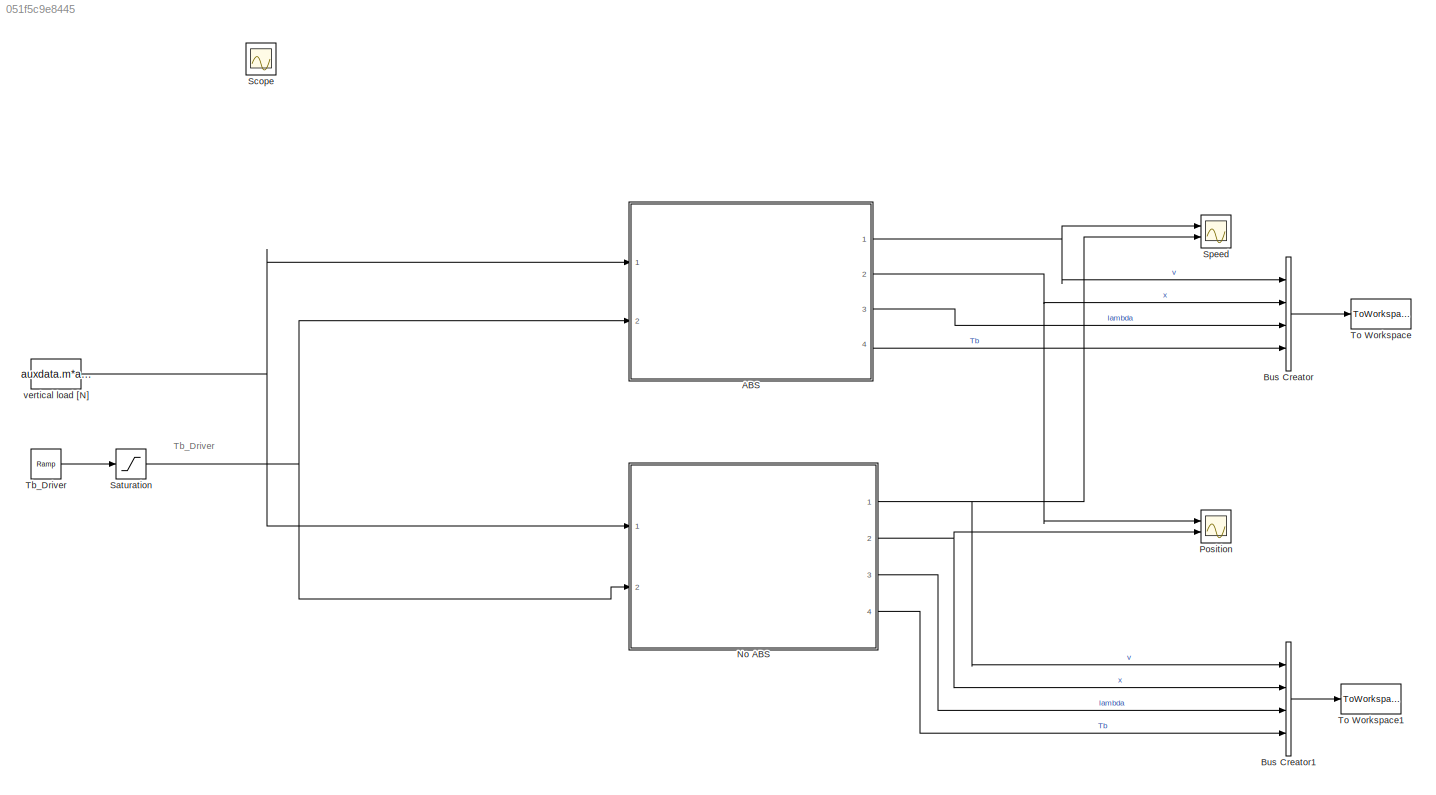
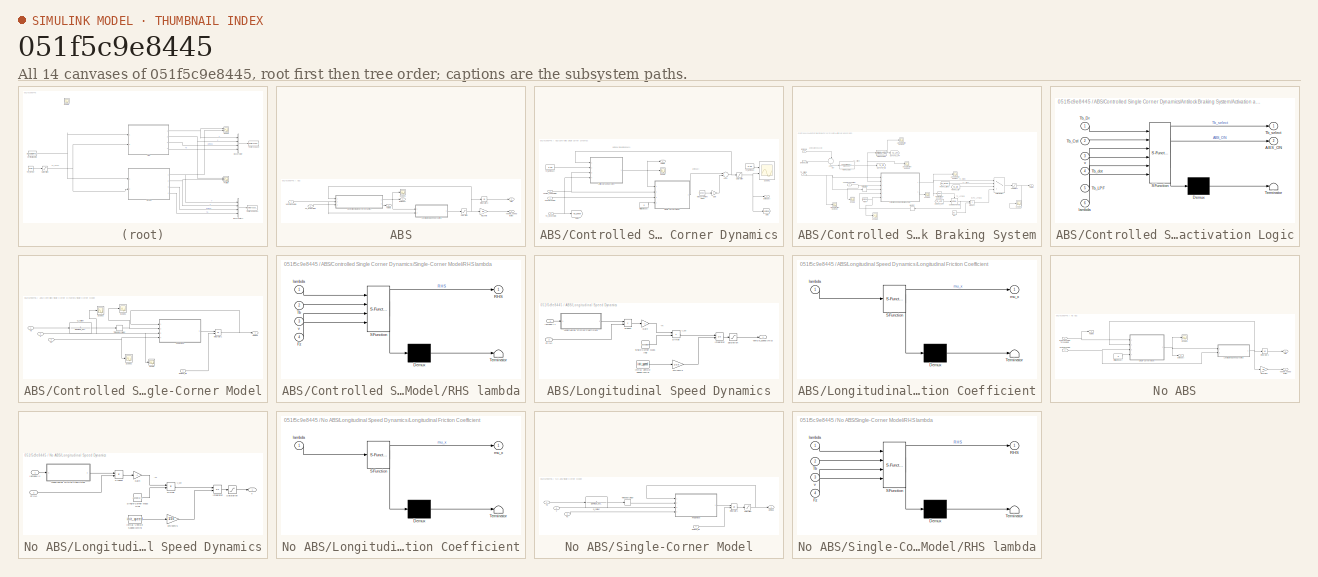
[diagram: thumbnail index - all 14 canvases of the model, root first then tree order]
MODEL slx_051f5c9e8445
KIND model
CONFIG AbsTol = auto
CONFIG EnableMultiTasking = on
CONFIG FixedStep = auto
CONFIG MaxStep = 1e-3
CONFIG MinStep = auto
CONFIG RelTol = 1e-3
CONFIG SampleTimeConstraint = Unconstrained
CONFIG Solver = VariableStepAuto
CONFIG SolverName = VariableStepAuto
CONFIG StartTime = 0.0
CONFIG StopTime = tf
BLOCK [SubSystem] ABS
  Ports = [2, 4]
  RequestExecContextInheritance = off
BLOCK [SubSystem] ABS/Controlled Single Corner Dynamics
  Ports = [3, 2]
  RequestExecContextInheritance = off
  TreatAsAtomicUnit = on
BLOCK [Sum] ABS/Controlled Single Corner Dynamics/Add1
  InputSameDT = off
  OutDataTypeStr = Inherit: Inherit via internal rule
  Ports = [2, 1]
  SaturateOnIntegerOverflow = off
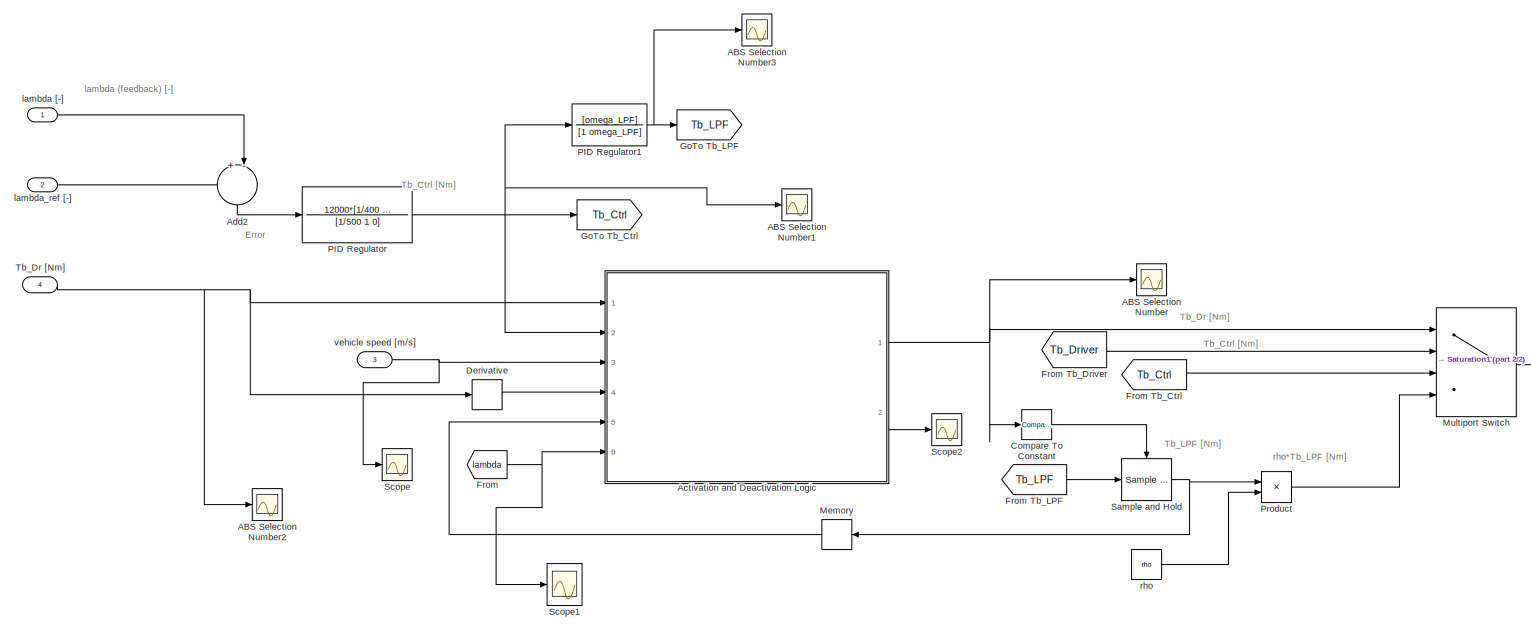
[diagram: ABS/Controlled Single Corner Dynamics/Antilock Braking System - part 1/2, most of the canvas]
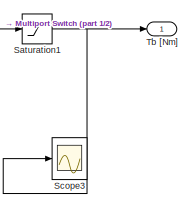
[diagram: ABS/Controlled Single Corner Dynamics/Antilock Braking System - part 2/2, bottom right region]
BLOCK [SubSystem] ABS/Controlled Single Corner Dynamics/Antilock Braking System
  Ports = [4, 1]
  RequestExecContextInheritance = off
BLOCK [Scope] ABS/Controlled Single Corner Dynamics/Antilock Braking System/ABS Selection Number
  Floating = off
  NumInputPorts = 1
  Ports = [1]
  ScopeSpecificationString = Simulink.scopes.TimeScopeBlockCfg('CurrentConfiguration', extmgr.ConfigurationSet(extmgr.Configuration('Core','General UI',true),extmgr.Configuration('Core','Source UI',true),extmgr.Configuration('Sources','WiredSimulink',true,'DataLoggingVariableName','ScopeData9'),extmgr.Configuration('Visuals','Time Domain',true,'SerializedDisplays',{struct('MinYLimReal','0.75','MaxYLimReal','3.25','YLabelReal'...<+1427ch>
BLOCK [Scope] ABS/Controlled Single Corner Dynamics/Antilock Braking System/ABS Selection Number1
  Floating = off
  NumInputPorts = 1
  Ports = [1]
  ScopeSpecificationString = Simulink.scopes.TimeScopeBlockCfg('CurrentConfiguration', extmgr.ConfigurationSet(extmgr.Configuration('Core','General UI',true),extmgr.Configuration('Core','Source UI',true),extmgr.Configuration('Sources','WiredSimulink',true,'DataLoggingVariableName','ScopeData1'),extmgr.Configuration('Visuals','Time Domain',true,'SerializedDisplays',{struct('MinYLimReal','-37.27','MaxYLimReal','1552.93735','YLa...<+1432ch>
BLOCK [Scope] ABS/Controlled Single Corner Dynamics/Antilock Braking System/ABS Selection Number2
  Floating = off
  NumInputPorts = 1
  Ports = [1]
  ScopeSpecificationString = Simulink.scopes.TimeScopeBlockCfg('CurrentConfiguration', extmgr.ConfigurationSet(extmgr.Configuration('Core','General UI',true),extmgr.Configuration('Core','Source UI',true),extmgr.Configuration('Sources','WiredSimulink',true,'DataLoggingVariableName','ScopeData2'),extmgr.Configuration('Visuals','Time Domain',true,'SerializedDisplays',{struct('MinYLimReal','-187.5','MaxYLimReal','1687.5','YLabelR...<+1414ch>
BLOCK [Scope] ABS/Controlled Single Corner Dynamics/Antilock Braking System/ABS Selection Number3
  Floating = off
  NumInputPorts = 1
  Ports = [1]
  ScopeSpecificationString = Simulink.scopes.TimeScopeBlockCfg('CurrentConfiguration', extmgr.ConfigurationSet(extmgr.Configuration('Core','General UI',true),extmgr.Configuration('Core','Source UI',true),extmgr.Configuration('Sources','WiredSimulink',true,'DataLoggingVariableName','ScopeData3'),extmgr.Configuration('Visuals','Time Domain',true,'SerializedDisplays',{struct('MinYLimReal','-174.09911','MaxYLimReal','1566.89198',...<+1442ch>
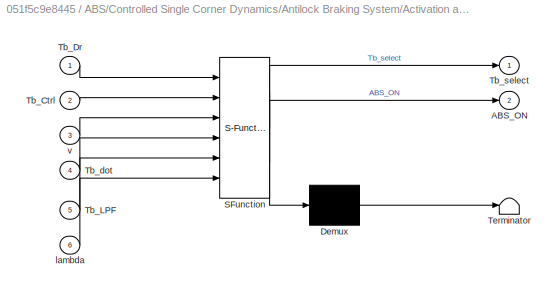
BLOCK [SubSystem] ABS/Controlled Single Corner Dynamics/Antilock Braking System/Activation and Deactivation Logic
  ErrorFcn = Stateflow.Translate.translate
  PermitHierarchicalResolution = ExplicitOnly
  Ports = [6, 2]
  RequestExecContextInheritance = off
  SFBlockType = Chart
  TreatAsAtomicUnit = on
BLOCK [Demux] ABS/Controlled Single Corner Dynamics/Antilock Braking System/Activation and Deactivation Logic/ Demux 
  Outputs = 1
  Ports = [1, 1]
BLOCK [S-Function] ABS/Controlled Single Corner Dynamics/Antilock Braking System/Activation and Deactivation Logic/ SFunction 
  EnableBusSupport = on
  FunctionName = sf_sfun
  Parameters = Tb_dot_max,hv,lambda1_th,lambda2_th,rho_off,rho_on,v_on,v_stop
  PortCounts = [6 3]
  Ports = [6, 3]
  SFcnIsStateOwnerBlock = off
  SFunctionDeploymentMode = off
  Tag = Stateflow S-Function ABS_contDyn_model 4
BLOCK [Terminator] ABS/Controlled Single Corner Dynamics/Antilock Braking System/Activation and Deactivation Logic/ Terminator 
BLOCK [Outport] ABS/Controlled Single Corner Dynamics/Antilock Braking System/Activation and Deactivation Logic/ABS_ON
  IconDisplay = Port number
  Port = 2
BLOCK [Inport] ABS/Controlled Single Corner Dynamics/Antilock Braking System/Activation and Deactivation Logic/Tb_Ctrl
  IconDisplay = Port number
  Port = 2
BLOCK [Inport] ABS/Controlled Single Corner Dynamics/Antilock Braking System/Activation and Deactivation Logic/Tb_Dr
  IconDisplay = Port number
BLOCK [Inport] ABS/Controlled Single Corner Dynamics/Antilock Braking System/Activation and Deactivation Logic/Tb_LPF
  IconDisplay = Port number
  Port = 5
BLOCK [Inport] ABS/Controlled Single Corner Dynamics/Antilock Braking System/Activation and Deactivation Logic/Tb_dot
  IconDisplay = Port number
  Port = 4
BLOCK [Outport] ABS/Controlled Single Corner Dynamics/Antilock Braking System/Activation and Deactivation Logic/Tb_select
  IconDisplay = Port number
BLOCK [Inport] ABS/Controlled Single Corner Dynamics/Antilock Braking System/Activation and Deactivation Logic/lambda
  IconDisplay = Port number
  Port = 6
BLOCK [Inport] ABS/Controlled Single Corner Dynamics/Antilock Braking System/Activation and Deactivation Logic/v
  IconDisplay = Port number
  Port = 3
BLOCK [Sum] ABS/Controlled Single Corner Dynamics/Antilock Braking System/Add2
  IconShape = round
  InputSameDT = off
  Inputs = +-|
  OutDataTypeStr = Inherit: Inherit via internal rule
  Ports = [2, 1]
  SaturateOnIntegerOverflow = off
BLOCK [Reference] ABS/Controlled Single Corner Dynamics/Antilock Braking System/Compare To Constant  REF=simulink/Logic and Bit
Operations/Compare
To Constant
  Ports = [1, 1]
  SourceBlock = simulink/Logic and Bit\nOperations/Compare\nTo Constant
  SourceProductBaseCode = SL
  SourceProductName = Simulink
  SourceType = Compare To Constant
BLOCK [Derivative] ABS/Controlled Single Corner Dynamics/Antilock Braking System/Derivative
BLOCK [From] ABS/Controlled Single Corner Dynamics/Antilock Braking System/From
  GotoTag = lambda
  TagVisibility = global
BLOCK [From] ABS/Controlled Single Corner Dynamics/Antilock Braking System/From Tb_Ctrl
  GotoTag = Tb_Ctrl
  TagVisibility = global
BLOCK [From] ABS/Controlled Single Corner Dynamics/Antilock Braking System/From Tb_Driver
  GotoTag = Tb_Driver
  TagVisibility = global
BLOCK [From] ABS/Controlled Single Corner Dynamics/Antilock Braking System/From Tb_LPF
  GotoTag = Tb_LPF
  TagVisibility = global
BLOCK [Goto] ABS/Controlled Single Corner Dynamics/Antilock Braking System/GoTo Tb_Ctrl
  GotoTag = Tb_Ctrl
  TagVisibility = global
BLOCK [Goto] ABS/Controlled Single Corner Dynamics/Antilock Braking System/GoTo Tb_LPF
  GotoTag = Tb_LPF
  TagVisibility = global
BLOCK [Memory] ABS/Controlled Single Corner Dynamics/Antilock Braking System/Memory
BLOCK [MultiPortSwitch] ABS/Controlled Single Corner Dynamics/Antilock Braking System/Multiport Switch
  InputSameDT = off
  Ports = [4, 1]
  SaturateOnIntegerOverflow = off
BLOCK [TransferFcn] ABS/Controlled Single Corner Dynamics/Antilock Braking System/PID Regulator
  Denominator = [1/500 1 0]
  Numerator = 12000*[1/400 1/10 1]
BLOCK [TransferFcn] ABS/Controlled Single Corner Dynamics/Antilock Braking System/PID Regulator1
  Denominator = [1 omega_LPF]
  Numerator = [omega_LPF]
BLOCK [Product] ABS/Controlled Single Corner Dynamics/Antilock Braking System/Product
  InputSameDT = off
  OutDataTypeStr = Inherit: Inherit via internal rule
  Ports = [2, 1]
  RndMeth = Floor
  SaturateOnIntegerOverflow = off
BLOCK [Reference] ABS/Controlled Single Corner Dynamics/Antilock Braking System/Sample and Hold  REF=dspsigops/Sample
and Hold
  Ports = [1, 1, 0, 1]
  SourceBlock = dspsigops/Sample\nand Hold
  SourceProductBaseCode = DS
  SourceProductName = DSP System Toolbox
  SourceType = Sample and Hold
BLOCK [Saturate] ABS/Controlled Single Corner Dynamics/Antilock Braking System/Saturation1
  InputPortMap = u0
  LowerLimit = 0
  Ports = [1, 1]
  UpperLimit = 1500
BLOCK [Scope] ABS/Controlled Single Corner Dynamics/Antilock Braking System/Scope
  Floating = off
  NumInputPorts = 1
  Ports = [1]
  ScopeSpecificationString = Simulink.scopes.TimeScopeBlockCfg('CurrentConfiguration', extmgr.ConfigurationSet(extmgr.Configuration('Core','General UI',true),extmgr.Configuration('Core','Source UI',true),extmgr.Configuration('Sources','WiredSimulink',true,'DataLoggingVariableName','ScopeData2'),extmgr.Configuration('Visuals','Time Domain',true,'SerializedDisplays',{struct('MinYLimReal','-3.4711','MaxYLimReal','31.24987','YLab...<+1406ch>
BLOCK [Scope] ABS/Controlled Single Corner Dynamics/Antilock Braking System/Scope1
  Floating = off
  NumInputPorts = 1
  Ports = [1]
  ScopeSpecificationString = Simulink.scopes.TimeScopeBlockCfg('CurrentConfiguration', extmgr.ConfigurationSet(extmgr.Configuration('Core','General UI',true),extmgr.Configuration('Core','Source UI',true),extmgr.Configuration('Sources','WiredSimulink',true,'DataLoggingVariableName','ScopeData6'),extmgr.Configuration('Visuals','Time Domain',true,'SerializedDisplays',{struct('MinYLimReal','-0.01727','MaxYLimReal','0.15542','YLab...<+1395ch>
BLOCK [Scope] ABS/Controlled Single Corner Dynamics/Antilock Braking System/Scope2
  Floating = off
  NumInputPorts = 1
  Ports = [1]
  ScopeSpecificationString = Simulink.scopes.TimeScopeBlockCfg('CurrentConfiguration', extmgr.ConfigurationSet(extmgr.Configuration('Core','General UI',true),extmgr.Configuration('Core','Source UI',true),extmgr.Configuration('Sources','WiredSimulink',true,'DataLoggingVariableName','ScopeData7'),extmgr.Configuration('Visuals','Time Domain',true,'SerializedDisplays',{struct('MinYLimReal','-0.125','MaxYLimReal','1.125','YLabelRe...<+1438ch>
BLOCK [Scope] ABS/Controlled Single Corner Dynamics/Antilock Braking System/Scope3
  Floating = off
  NumInputPorts = 1
  Ports = [1]
  ScopeSpecificationString = Simulink.scopes.TimeScopeBlockCfg('CurrentConfiguration', extmgr.ConfigurationSet(extmgr.Configuration('Core','General UI',true),extmgr.Configuration('Core','Source UI',true),extmgr.Configuration('Sources','WiredSimulink',true,'DataLoggingVariableName','ScopeData7'),extmgr.Configuration('Visuals','Time Domain',true,'SerializedDisplays',{struct('MinYLimReal','-187.5','MaxYLimReal','1687.5','YLabelR...<+1390ch>
BLOCK [Outport] ABS/Controlled Single Corner Dynamics/Antilock Braking System/Tb [Nm]
  IconDisplay = Port number
BLOCK [Inport] ABS/Controlled Single Corner Dynamics/Antilock Braking System/Tb_Dr [Nm]
  IconDisplay = Port number
  Port = 4
BLOCK [Inport] ABS/Controlled Single Corner Dynamics/Antilock Braking System/lambda [-]
  IconDisplay = Port number
BLOCK [Inport] ABS/Controlled Single Corner Dynamics/Antilock Braking System/lambda_ref [-]
  IconDisplay = Port number
  Port = 2
BLOCK [Constant] ABS/Controlled Single Corner Dynamics/Antilock Braking System/rho
  Value = rho
BLOCK [Inport] ABS/Controlled Single Corner Dynamics/Antilock Braking System/vehicle speed [m//s]
  IconDisplay = Port number
  Port = 3
BLOCK [Gain] ABS/Controlled Single Corner Dynamics/Gain
  Gain = 0
  OutDataTypeStr = Inherit: Inherit via internal rule
  ParamDataTypeStr = Inherit: Inherit via internal rule
  SaturateOnIntegerOverflow = off
BLOCK [Goto] ABS/Controlled Single Corner Dynamics/Goto
  GotoTag = lambda
  TagVisibility = global
BLOCK [Goto] ABS/Controlled Single Corner Dynamics/Goto1
  GotoTag = Tb_Driver
  TagVisibility = global
BLOCK [RandomNumber] ABS/Controlled Single Corner Dynamics/Measurement Noise
  SampleTime = 0.001
  Variance = 2e-5
BLOCK [Saturate] ABS/Controlled Single Corner Dynamics/Saturation
  InputPortMap = u0
  LowerLimit = 0
  Ports = [1, 1]
  UpperLimit = 1
BLOCK [Scope] ABS/Controlled Single Corner Dynamics/Scope
  Floating = off
  NumInputPorts = 1
  Ports = [1]
  ScopeSpecificationString = Simulink.scopes.TimeScopeBlockCfg('CurrentConfiguration', extmgr.ConfigurationSet(extmgr.Configuration('Core','General UI',true),extmgr.Configuration('Core','Source UI',true),extmgr.Configuration('Sources','WiredSimulink',true,'DataLoggingVariableName','ScopeData4'),extmgr.Configuration('Visuals','Time Domain',true,'SerializedDisplays',{struct('MinYLimReal','-187.5','MaxYLimReal','1687.5','YLabelR...<+1446ch>
BLOCK [Scope] ABS/Controlled Single Corner Dynamics/Scope1
  Floating = off
  NumInputPorts = 2
  Ports = [2]
  ScopeSpecificationString = Simulink.scopes.TimeScopeBlockCfg('CurrentConfiguration', extmgr.ConfigurationSet(extmgr.Configuration('Core','General UI',true),extmgr.Configuration('Core','Source UI',true),extmgr.Configuration('Sources','WiredSimulink',true,'DataLoggingVariableName','ScopeData1'),extmgr.Configuration('Visuals','Time Domain',true,'SerializedDisplays',{struct('MinYLimReal','-0.04386','MaxYLimReal','0.39474','YLab...<+1453ch>
BLOCK [SubSystem] ABS/Controlled Single Corner Dynamics/Single-Corner Model
  Ports = [4, 1]
  RequestExecContextInheritance = off
  ShowPortLabels = none
BLOCK [Inport] ABS/Controlled Single Corner Dynamics/Single-Corner Model/Fz
  IconDisplay = Port number
  Port = 3
BLOCK [TransferFcn] ABS/Controlled Single Corner Dynamics/Single-Corner Model/G_caliper
  Denominator = [1/omega_act 1]
  Numerator = 1
BLOCK [Integrator] ABS/Controlled Single Corner Dynamics/Single-Corner Model/Integrator1
  InitialConditionSource = external
  Ports = [2, 1]
BLOCK [SubSystem] ABS/Controlled Single Corner Dynamics/Single-Corner Model/RHS lambda
  ErrorFcn = Stateflow.Translate.translate
  PermitHierarchicalResolution = ExplicitOnly
  Ports = [4, 1]
  RequestExecContextInheritance = off
  SFBlockType = MATLAB Function
  TreatAsAtomicUnit = on
BLOCK [Demux] ABS/Controlled Single Corner Dynamics/Single-Corner Model/RHS lambda/ Demux 
  Outputs = 1
  Ports = [1, 1]
BLOCK [S-Function] ABS/Controlled Single Corner Dynamics/Single-Corner Model/RHS lambda/ SFunction 
  EnableBusSupport = on
  FunctionName = sf_sfun
  Parameters = auxdata
  PortCounts = [4 2]
  Ports = [4, 2]
  SFcnIsStateOwnerBlock = off
  SFunctionDeploymentMode = off
  Tag = Stateflow S-Function ABS_contDyn_model 1
BLOCK [Terminator] ABS/Controlled Single Corner Dynamics/Single-Corner Model/RHS lambda/ Terminator 
BLOCK [Inport] ABS/Controlled Single Corner Dynamics/Single-Corner Model/RHS lambda/Fz
  IconDisplay = Port number
  Port = 4
BLOCK [Outport] ABS/Controlled Single Corner Dynamics/Single-Corner Model/RHS lambda/RHS
  IconDisplay = Port number
BLOCK [Inport] ABS/Controlled Single Corner Dynamics/Single-Corner Model/RHS lambda/Tb
  IconDisplay = Port number
  Port = 2
BLOCK [Inport] ABS/Controlled Single Corner Dynamics/Single-Corner Model/RHS lambda/lambda
  IconDisplay = Port number
BLOCK [Inport] ABS/Controlled Single Corner Dynamics/Single-Corner Model/RHS lambda/v
  IconDisplay = Port number
  Port = 3
BLOCK [Scope] ABS/Controlled Single Corner Dynamics/Single-Corner Model/Scope
  Floating = off
  NumInputPorts = 1
  Ports = [1]
  ScopeSpecificationString = Simulink.scopes.TimeScopeBlockCfg('CurrentConfiguration', extmgr.ConfigurationSet(extmgr.Configuration('Core','General UI',true),extmgr.Configuration('Core','Source UI',true),extmgr.Configuration('Sources','WiredSimulink',true,'DataLoggingVariableName','ScopeData1'),extmgr.Configuration('Visuals','Time Domain',true,'SerializedDisplays',{struct('MinYLimReal','-3.4711','MaxYLimReal','31.24987','YLab...<+1388ch>
BLOCK [Scope] ABS/Controlled Single Corner Dynamics/Single-Corner Model/Scope1
  Floating = off
  NumInputPorts = 1
  Ports = [1]
  ScopeSpecificationString = Simulink.scopes.TimeScopeBlockCfg('CurrentConfiguration', extmgr.ConfigurationSet(extmgr.Configuration('Core','General UI',true),extmgr.Configuration('Core','Source UI',true),extmgr.Configuration('Sources','WiredSimulink',true,'DataLoggingVariableName','ScopeData4'),extmgr.Configuration('Visuals','Time Domain',true,'SerializedDisplays',{struct('MinYLimReal','-187.5','MaxYLimReal','1687.5','YLabelR...<+1397ch>
BLOCK [Scope] ABS/Controlled Single Corner Dynamics/Single-Corner Model/Scope2
  Floating = off
  NumInputPorts = 1
  Ports = [1]
  ScopeSpecificationString = Simulink.scopes.TimeScopeBlockCfg('CurrentConfiguration', extmgr.ConfigurationSet(extmgr.Configuration('Core','General UI',true),extmgr.Configuration('Core','Source UI',true),extmgr.Configuration('Sources','WiredSimulink',true,'DataLoggingVariableName','ScopeData4'),extmgr.Configuration('Visuals','Time Domain',true,'SerializedDisplays',{struct('MinYLimReal','2310.875','MaxYLimReal','4310.875','YLa...<+1393ch>
BLOCK [Scope] ABS/Controlled Single Corner Dynamics/Single-Corner Model/Scope3
  Floating = off
  NumInputPorts = 1
  Ports = [1]
  ScopeSpecificationString = Simulink.scopes.TimeScopeBlockCfg('CurrentConfiguration', extmgr.ConfigurationSet(extmgr.Configuration('Core','General UI',true),extmgr.Configuration('Core','Source UI',true),extmgr.Configuration('Sources','WiredSimulink',true,'DataLoggingVariableName','ScopeData5'),extmgr.Configuration('Visuals','Time Domain',true,'SerializedDisplays',{struct('MinYLimReal','-3.4711','MaxYLimReal','31.24987','YLab...<+1388ch>
BLOCK [Inport] ABS/Controlled Single Corner Dynamics/Single-Corner Model/Tb
  IconDisplay = Port number
BLOCK [TransportDelay] ABS/Controlled Single Corner Dynamics/Single-Corner Model/Time delay caliper
  DelayTime = tau_delay
  Ports = [1, 1]
BLOCK [Outport] ABS/Controlled Single Corner Dynamics/Single-Corner Model/lambda
  IconDisplay = Port number
BLOCK [Inport] ABS/Controlled Single Corner Dynamics/Single-Corner Model/lambda_init
  IconDisplay = Port number
  Port = 4
BLOCK [Inport] ABS/Controlled Single Corner Dynamics/Single-Corner Model/v
  IconDisplay = Port number
  Port = 2
BLOCK [Outport] ABS/Controlled Single Corner Dynamics/Tb [Nm]
  IconDisplay = Port number
  Port = 2
BLOCK [Inport] ABS/Controlled Single Corner Dynamics/Tb_Driver [Nm]
  IconDisplay = Port number
  Port = 3
BLOCK [Inport] ABS/Controlled Single Corner Dynamics/Vertical Load [N]
  IconDisplay = Port number
  Port = 2
BLOCK [Constant] ABS/Controlled Single Corner Dynamics/initial lambda [-]
  Value = 0
BLOCK [Outport] ABS/Controlled Single Corner Dynamics/lambda [-]
  IconDisplay = Port number
BLOCK [Constant] ABS/Controlled Single Corner Dynamics/ref_lambda [-]
  Value = 0.09
BLOCK [Constant] ABS/Controlled Single Corner Dynamics/ref_lambda1
  Value = 0.09
BLOCK [Inport] ABS/Controlled Single Corner Dynamics/vehilce_speed [m//s]
  IconDisplay = Port number
BLOCK [Integrator] ABS/Integrator2
  Ports = [1, 1]
BLOCK [SubSystem] ABS/Longitudinal Speed Dynamics
  Ports = [2, 1]
  RequestExecContextInheritance = off
BLOCK [Product] ABS/Longitudinal Speed Dynamics/Divide
  InputSameDT = off
  Inputs = */
  OutDataTypeStr = Inherit: Inherit via internal rule
  Ports = [2, 1]
  RndMeth = Floor
  SaturateOnIntegerOverflow = off
BLOCK [Inport] ABS/Longitudinal Speed Dynamics/Fz [N]
  IconDisplay = Port number
  Port = 2
BLOCK [Gain] ABS/Longitudinal Speed Dynamics/Gain
  Gain = -1
  OutDataTypeStr = Inherit: Inherit via internal rule
  ParamDataTypeStr = Inherit: Inherit via internal rule
  SaturateOnIntegerOverflow = off
BLOCK [Constant] ABS/Longitudinal Speed Dynamics/Initial Vehicle Speed [km//h]
  Value = init_speed
BLOCK [Integrator] ABS/Longitudinal Speed Dynamics/Integrator
  InitialConditionSource = external
  Ports = [2, 1]
BLOCK [SubSystem] ABS/Longitudinal Speed Dynamics/Longitudinal Friction Coefficient
  ErrorFcn = Stateflow.Translate.translate
  PermitHierarchicalResolution = ExplicitOnly
  Ports = [1, 1]
  RequestExecContextInheritance = off
  SFBlockType = MATLAB Function
  TreatAsAtomicUnit = on
BLOCK [Demux] ABS/Longitudinal Speed Dynamics/Longitudinal Friction Coefficient/ Demux 
  Outputs = 1
  Ports = [1, 1]
BLOCK [S-Function] ABS/Longitudinal Speed Dynamics/Longitudinal Friction Coefficient/ SFunction 
  EnableBusSupport = on
  FunctionName = sf_sfun
  Parameters = auxdata
  PortCounts = [1 2]
  Ports = [1, 2]
  SFcnIsStateOwnerBlock = off
  SFunctionDeploymentMode = off
  Tag = Stateflow S-Function ABS_contDyn_model 2
BLOCK [Terminator] ABS/Longitudinal Speed Dynamics/Longitudinal Friction Coefficient/ Terminator 
BLOCK [Inport] ABS/Longitudinal Speed Dynamics/Longitudinal Friction Coefficient/lambda
  IconDisplay = Port number
BLOCK [Outport] ABS/Longitudinal Speed Dynamics/Longitudinal Friction Coefficient/mu_x
  IconDisplay = Port number
BLOCK [Product] ABS/Longitudinal Speed Dynamics/Product
  InputSameDT = off
  OutDataTypeStr = Inherit: Inherit via internal rule
  Ports = [2, 1]
  RndMeth = Floor
  SaturateOnIntegerOverflow = off
BLOCK [Saturate] ABS/Longitudinal Speed Dynamics/Saturation
  InputPortMap = u0
  LowerLimit = 0
  Ports = [1, 1]
  UpperLimit = 100
BLOCK [Constant] ABS/Longitudinal Speed Dynamics/Single-Corner Mass [Kg]
  Value = auxdata.m
BLOCK [Gain] ABS/Longitudinal Speed Dynamics/km//h2m//s
  Gain = 1/3.6
  OutDataTypeStr = Inherit: Inherit via internal rule
  ParamDataTypeStr = Inherit: Inherit via internal rule
  SaturateOnIntegerOverflow = off
BLOCK [Inport] ABS/Longitudinal Speed Dynamics/lambda [-]
  IconDisplay = Port number
BLOCK [Outport] ABS/Longitudinal Speed Dynamics/vehicle_speed [m//s]
  IconDisplay = Port number
BLOCK [Saturate] ABS/Saturation
  InputPortMap = u0
  LowerLimit = 1e-3
  Ports = [1, 1]
  UpperLimit = 100
BLOCK [Scope] ABS/Scope1
  Floating = off
  NumInputPorts = 1
  Ports = [1]
  ScopeSpecificationString = Simulink.scopes.TimeScopeBlockCfg('CurrentConfiguration', extmgr.ConfigurationSet(extmgr.Configuration('Core','General UI',true),extmgr.Configuration('Core','Source UI',true),extmgr.Configuration('Sources','WiredSimulink',true,'DataLoggingVariableName','ScopeData2'),extmgr.Configuration('Visuals','Time Domain',true,'SerializedDisplays',{struct('MinYLimReal','-0.12442','MaxYLimReal','1.11982','YLab...<+1466ch>
BLOCK [Outport] ABS/Tb [Nm]
  IconDisplay = Port number
  Port = 4
BLOCK [Inport] ABS/Tb_Driver [Nm]
  IconDisplay = Port number
  Port = 2
BLOCK [Inport] ABS/Vertical Load [N]
  IconDisplay = Port number
BLOCK [Outport] ABS/lambda [-]
  IconDisplay = Port number
  Port = 3
BLOCK [Gain] ABS/m//s2km//h
  Gain = 3.6
  OutDataTypeStr = Inherit: Inherit via internal rule
  ParamDataTypeStr = Inherit: Inherit via internal rule
  SaturateOnIntegerOverflow = off
BLOCK [Outport] ABS/vehicle_speed [km//h]
  IconDisplay = Port number
BLOCK [Outport] ABS/x [m]
  IconDisplay = Port number
  Port = 2
BLOCK [BusCreator] Bus Creator
  DisplayOption = bar
  InheritFromInputs = on
  Inputs = 4
  Ports = [4, 1]
BLOCK [BusCreator] Bus Creator1
  DisplayOption = bar
  InheritFromInputs = on
  Inputs = 4
  Ports = [4, 1]
BLOCK [SubSystem] No ABS
  Ports = [2, 4]
  RequestExecContextInheritance = off
BLOCK [Outport] No ABS/ vehicle_speed [km//h]
  IconDisplay = Port number
BLOCK [Inport] No ABS/Driver Braking Torque [Nm]
  IconDisplay = Port number
  Port = 2
BLOCK [Integrator] No ABS/Integrator3
  Ports = [1, 1]
BLOCK [SubSystem] No ABS/Longitudinal Speed Dynamics
  Ports = [2, 1]
  RequestExecContextInheritance = off
BLOCK [Product] No ABS/Longitudinal Speed Dynamics/Divide
  InputSameDT = off
  Inputs = */
  OutDataTypeStr = Inherit: Inherit via internal rule
  Ports = [2, 1]
  RndMeth = Floor
  SaturateOnIntegerOverflow = off
BLOCK [Inport] No ABS/Longitudinal Speed Dynamics/Fz [N]
  IconDisplay = Port number
  Port = 2
BLOCK [Gain] No ABS/Longitudinal Speed Dynamics/Gain
  Gain = -1
  OutDataTypeStr = Inherit: Inherit via internal rule
  ParamDataTypeStr = Inherit: Inherit via internal rule
  SaturateOnIntegerOverflow = off
BLOCK [Constant] No ABS/Longitudinal Speed Dynamics/Initial Vehicle Speed [km//h]
  Value = init_speed
BLOCK [Integrator] No ABS/Longitudinal Speed Dynamics/Integrator
  InitialConditionSource = external
  Ports = [2, 1]
BLOCK [SubSystem] No ABS/Longitudinal Speed Dynamics/Longitudinal Friction Coefficient
  ErrorFcn = Stateflow.Translate.translate
  PermitHierarchicalResolution = ExplicitOnly
  Ports = [1, 1]
  RequestExecContextInheritance = off
  SFBlockType = MATLAB Function
  TreatAsAtomicUnit = on
BLOCK [Demux] No ABS/Longitudinal Speed Dynamics/Longitudinal Friction Coefficient/ Demux 
  Outputs = 1
  Ports = [1, 1]
BLOCK [S-Function] No ABS/Longitudinal Speed Dynamics/Longitudinal Friction Coefficient/ SFunction 
  EnableBusSupport = on
  FunctionName = sf_sfun
  Parameters = auxdata
  PortCounts = [1 2]
  Ports = [1, 2]
  SFcnIsStateOwnerBlock = off
  SFunctionDeploymentMode = off
  Tag = Stateflow S-Function ABS_contDyn_model 5
BLOCK [Terminator] No ABS/Longitudinal Speed Dynamics/Longitudinal Friction Coefficient/ Terminator 
BLOCK [Inport] No ABS/Longitudinal Speed Dynamics/Longitudinal Friction Coefficient/lambda
  IconDisplay = Port number
BLOCK [Outport] No ABS/Longitudinal Speed Dynamics/Longitudinal Friction Coefficient/mu_x
  IconDisplay = Port number
BLOCK [Product] No ABS/Longitudinal Speed Dynamics/Product
  InputSameDT = off
  OutDataTypeStr = Inherit: Inherit via internal rule
  Ports = [2, 1]
  RndMeth = Floor
  SaturateOnIntegerOverflow = off
BLOCK [Saturate] No ABS/Longitudinal Speed Dynamics/Saturation
  InputPortMap = u0
  LowerLimit = 1e-3
  Ports = [1, 1]
  UpperLimit = 100
BLOCK [Constant] No ABS/Longitudinal Speed Dynamics/Single-Corner Mass [Kg]
  Value = auxdata.m
BLOCK [Gain] No ABS/Longitudinal Speed Dynamics/km//h2m//s
  Gain = 1/3.6
  OutDataTypeStr = Inherit: Inherit via internal rule
  ParamDataTypeStr = Inherit: Inherit via internal rule
  SaturateOnIntegerOverflow = off
BLOCK [Inport] No ABS/Longitudinal Speed Dynamics/lambda [-]
  IconDisplay = Port number
BLOCK [Outport] No ABS/Longitudinal Speed Dynamics/v
  IconDisplay = Port number
BLOCK [Scope] No ABS/Scope3
  Floating = off
  NumInputPorts = 1
  Ports = [1]
  ScopeSpecificationString = Simulink.scopes.TimeScopeBlockCfg('CurrentConfiguration', extmgr.ConfigurationSet(extmgr.Configuration('Core','General UI',true),extmgr.Configuration('Core','Source UI',true),extmgr.Configuration('Sources','WiredSimulink',true,'DataLoggingVariableName','ScopeData5'),extmgr.Configuration('Visuals','Time Domain',true,'SerializedDisplays',{struct('MinYLimReal','-0.12375','MaxYLimReal','1.11375','YLab...<+1378ch>
BLOCK [SubSystem] No ABS/Single-Corner Model
  Ports = [4, 1]
  RequestExecContextInheritance = off
  ShowPortLabels = none
BLOCK [Inport] No ABS/Single-Corner Model/Fz
  IconDisplay = Port number
  Port = 3
BLOCK [TransferFcn] No ABS/Single-Corner Model/G_caliper
  Denominator = [1/omega_act 1]
  Numerator = 1
BLOCK [Integrator] No ABS/Single-Corner Model/Integrator1
  InitialConditionSource = external
  Ports = [2, 1]
BLOCK [SubSystem] No ABS/Single-Corner Model/RHS lambda
  ErrorFcn = Stateflow.Translate.translate
  PermitHierarchicalResolution = ExplicitOnly
  Ports = [4, 1]
  RequestExecContextInheritance = off
  SFBlockType = MATLAB Function
  TreatAsAtomicUnit = on
BLOCK [Demux] No ABS/Single-Corner Model/RHS lambda/ Demux 
  Outputs = 1
  Ports = [1, 1]
BLOCK [S-Function] No ABS/Single-Corner Model/RHS lambda/ SFunction 
  EnableBusSupport = on
  FunctionName = sf_sfun
  Parameters = auxdata
  PortCounts = [4 2]
  Ports = [4, 2]
  SFcnIsStateOwnerBlock = off
  SFunctionDeploymentMode = off
  Tag = Stateflow S-Function ABS_contDyn_model 3
BLOCK [Terminator] No ABS/Single-Corner Model/RHS lambda/ Terminator 
BLOCK [Inport] No ABS/Single-Corner Model/RHS lambda/Fz
  IconDisplay = Port number
  Port = 4
BLOCK [Outport] No ABS/Single-Corner Model/RHS lambda/RHS
  IconDisplay = Port number
BLOCK [Inport] No ABS/Single-Corner Model/RHS lambda/Tb
  IconDisplay = Port number
  Port = 2
BLOCK [Inport] No ABS/Single-Corner Model/RHS lambda/lambda
  IconDisplay = Port number
BLOCK [Inport] No ABS/Single-Corner Model/RHS lambda/v
  IconDisplay = Port number
  Port = 3
BLOCK [Saturate] No ABS/Single-Corner Model/Saturation
  InputPortMap = u0
  LowerLimit = 0
  Ports = [1, 1]
  UpperLimit = 0.99
BLOCK [Inport] No ABS/Single-Corner Model/Tb
  IconDisplay = Port number
BLOCK [TransportDelay] No ABS/Single-Corner Model/Time delay caliper
  DelayTime = tau_delay
  Ports = [1, 1]
BLOCK [Outport] No ABS/Single-Corner Model/lambda
  IconDisplay = Port number
BLOCK [Inport] No ABS/Single-Corner Model/lambda_init
  IconDisplay = Port number
  Port = 4
BLOCK [Inport] No ABS/Single-Corner Model/v
  IconDisplay = Port number
  Port = 2
BLOCK [Outport] No ABS/Tb [Nm]
  IconDisplay = Port number
  Port = 4
BLOCK [Inport] No ABS/Vertical Load [N]
  IconDisplay = Port number
BLOCK [Constant] No ABS/initial lambda [-]
  Value = 0
BLOCK [Outport] No ABS/lambda [-]
  IconDisplay = Port number
  Port = 3
BLOCK [Gain] No ABS/m//s2km//h1
  Gain = 3.6
  OutDataTypeStr = Inherit: Inherit via internal rule
  ParamDataTypeStr = Inherit: Inherit via internal rule
  SaturateOnIntegerOverflow = off
BLOCK [Outport] No ABS/x [m]
  IconDisplay = Port number
  Port = 2
BLOCK [Scope] Position
  Floating = off
  NumInputPorts = 2
  Ports = [2]
  ScopeSpecificationString = Simulink.scopes.TimeScopeBlockCfg('CurrentConfiguration', extmgr.ConfigurationSet(extmgr.Configuration('Core','General UI',true),extmgr.Configuration('Core','Source UI',true),extmgr.Configuration('Sources','WiredSimulink',true,'DataLoggingVariableName','ScopeData6'),extmgr.Configuration('Visuals','Time Domain',true,'SerializedDisplays',{struct('MinYLimReal','-8.48115','MaxYLimReal','76.33031','YLa...<+1439ch>
BLOCK [Saturate] Saturation
  InputPortMap = u0
  Ports = [1, 1]
  UpperLimit = 1500
BLOCK [Scope] Scope
  Floating = off
  IOType = viewer
  NumInputPorts = 1
  Ports = []
  ScopeSpecificationString = Simulink.scopes.TimeScopeBlockCfg('CurrentConfiguration', extmgr.ConfigurationSet(extmgr.Configuration('Core','General UI',true),extmgr.Configuration('Core','Source UI',true),extmgr.Configuration('Sources','WiredSimulink',true),extmgr.Configuration('Visuals','Time Domain',true,'SerializedDisplays',{struct('MinYLimReal','-0.01608','MaxYLimReal','0.14469','YLabelReal','','MinYLimMag','0.00000','MaxY...<+1358ch>
BLOCK [Scope] Speed
  Floating = off
  NumInputPorts = 2
  Ports = [2]
  ScopeSpecificationString = Simulink.scopes.TimeScopeBlockCfg('CurrentConfiguration', extmgr.ConfigurationSet(extmgr.Configuration('Core','General UI',true),extmgr.Configuration('Core','Source UI',true),extmgr.Configuration('Sources','WiredSimulink',true,'DataLoggingVariableName','ScopeData3'),extmgr.Configuration('Visuals','Time Domain',true,'SerializedDisplays',{struct('MinYLimReal','-3.18764','MaxYLimReal','44.79863','YLa...<+1421ch>
BLOCK [Reference] Tb_Driver  REF=simulink/Sources/Ramp
  Ports = [0, 1]
  SourceBlock = simulink/Sources/Ramp
  SourceProductBaseCode = SL
  SourceProductName = Simulink
  SourceType = Ramp
BLOCK [ToWorkspace] To Workspace
  FixptAsFi = on
  MaxDataPoints = inf
  Ports = [1]
  SampleTime = -1
  Save2DSignal = 3-D array (concatenate along third dimension)
  SaveFormat = Timeseries
  VariableName = ABS
BLOCK [ToWorkspace] To Workspace1
  FixptAsFi = on
  MaxDataPoints = inf
  Ports = [1]
  SampleTime = -1
  Save2DSignal = 3-D array (concatenate along third dimension)
  SaveFormat = Timeseries
  VariableName = noABS
BLOCK [Constant] vertical load [N]
  Value = auxdata.m*auxdata.g*1.5
ANNOTATION (root): Tb_Driver
ANNOTATION ABS/Controlled Single Corner Dynamics: lambda (meas. feedback)
ANNOTATION ABS/Controlled Single Corner Dynamics: lambda [-]
ANNOTATION ABS/Controlled Single Corner Dynamics/Antilock Braking System: Error
ANNOTATION ABS/Controlled Single Corner Dynamics/Antilock Braking System: Tb_Ctrl [Nm]
ANNOTATION ABS/Controlled Single Corner Dynamics/Antilock Braking System: Tb_Dr [Nm]
ANNOTATION ABS/Controlled Single Corner Dynamics/Antilock Braking System: Tb_LPF [Nm]
ANNOTATION ABS/Controlled Single Corner Dynamics/Antilock Braking System: lambda (feedback) [-]
ANNOTATION ABS/Controlled Single Corner Dynamics/Antilock Braking System: rho*Tb_LPF [Nm]
ANNOTATION ABS/Longitudinal Speed Dynamics: -Fx
ANNOTATION ABS/Longitudinal Speed Dynamics: v_dot
ANNOTATION No ABS/Longitudinal Speed Dynamics: -Fx
ANNOTATION No ABS/Longitudinal Speed Dynamics: v_dot
NET ABS/Controlled Single Corner Dynamics/Add1:1 -> ABS/Controlled Single Corner Dynamics/Antilock Braking System:1, ABS/Controlled Single Corner Dynamics/Saturation:1
NET ABS/Controlled Single Corner Dynamics/Antilock Braking System/Activation and Deactivation Logic:1 -> ABS/Controlled Single Corner Dynamics/Antilock Braking System/ABS Selection Number:1, ABS/Controlled Single Corner Dynamics/Antilock Braking System/Compare To Constant:1, ABS/Controlled Single Corner Dynamics/Antilock Braking System/Multiport Switch:1
LINE ABS/Controlled Single Corner Dynamics/Antilock Braking System/Activation and Deactivation Logic:2 -> ABS/Controlled Single Corner Dynamics/Antilock Braking System/Scope2:1
LINE ABS/Controlled Single Corner Dynamics/Antilock Braking System/Add2:1 -> ABS/Controlled Single Corner Dynamics/Antilock Braking System/PID Regulator:1
LINE ABS/Controlled Single Corner Dynamics/Antilock Braking System/Compare To Constant:1 -> ABS/Controlled Single Corner Dynamics/Antilock Braking System/Sample and Hold:trigger
LINE ABS/Controlled Single Corner Dynamics/Antilock Braking System/Derivative:1 -> ABS/Controlled Single Corner Dynamics/Antilock Braking System/Activation and Deactivation Logic:4
LINE ABS/Controlled Single Corner Dynamics/Antilock Braking System/From Tb_Ctrl:1 -> ABS/Controlled Single Corner Dynamics/Antilock Braking System/Multiport Switch:3
LINE ABS/Controlled Single Corner Dynamics/Antilock Braking System/From Tb_Driver:1 -> ABS/Controlled Single Corner Dynamics/Antilock Braking System/Multiport Switch:2
LINE ABS/Controlled Single Corner Dynamics/Antilock Braking System/From Tb_LPF:1 -> ABS/Controlled Single Corner Dynamics/Antilock Braking System/Sample and Hold:1
NET ABS/Controlled Single Corner Dynamics/Antilock Braking System/From:1 -> ABS/Controlled Single Corner Dynamics/Antilock Braking System/Activation and Deactivation Logic:6, ABS/Controlled Single Corner Dynamics/Antilock Braking System/Scope1:1
LINE ABS/Controlled Single Corner Dynamics/Antilock Braking System/Memory:1 -> ABS/Controlled Single Corner Dynamics/Antilock Braking System/Activation and Deactivation Logic:5
LINE ABS/Controlled Single Corner Dynamics/Antilock Braking System/Multiport Switch:1 -> ABS/Controlled Single Corner Dynamics/Antilock Braking System/Saturation1:1
NET ABS/Controlled Single Corner Dynamics/Antilock Braking System/PID Regulator1:1 -> ABS/Controlled Single Corner Dynamics/Antilock Braking System/ABS Selection Number3:1, ABS/Controlled Single Corner Dynamics/Antilock Braking System/GoTo Tb_LPF:1
NET ABS/Controlled Single Corner Dynamics/Antilock Braking System/PID Regulator:1 -> ABS/Controlled Single Corner Dynamics/Antilock Braking System/ABS Selection Number1:1, ABS/Controlled Single Corner Dynamics/Antilock Braking System/Activation and Deactivation Logic:2, ABS/Controlled Single Corner Dynamics/Antilock Braking System/GoTo Tb_Ctrl:1, ABS/Controlled Single Corner Dynamics/Antilock Braking System/PID Regulator1:1
LINE ABS/Controlled Single Corner Dynamics/Antilock Braking System/Product:1 -> ABS/Controlled Single Corner Dynamics/Antilock Braking System/Multiport Switch:4
NET ABS/Controlled Single Corner Dynamics/Antilock Braking System/Sample and Hold:1 -> ABS/Controlled Single Corner Dynamics/Antilock Braking System/Memory:1, ABS/Controlled Single Corner Dynamics/Antilock Braking System/Product:1
NET ABS/Controlled Single Corner Dynamics/Antilock Braking System/Saturation1:1 -> ABS/Controlled Single Corner Dynamics/Antilock Braking System/Scope3:1, ABS/Controlled Single Corner Dynamics/Antilock Braking System/Tb [Nm]:1
NET ABS/Controlled Single Corner Dynamics/Antilock Braking System/Tb_Dr [Nm]:1 -> ABS/Controlled Single Corner Dynamics/Antilock Braking System/ABS Selection Number2:1, ABS/Controlled Single Corner Dynamics/Antilock Braking System/Activation and Deactivation Logic:1, ABS/Controlled Single Corner Dynamics/Antilock Braking System/Derivative:1
LINE ABS/Controlled Single Corner Dynamics/Antilock Braking System/lambda [-]:1 -> ABS/Controlled Single Corner Dynamics/Antilock Braking System/Add2:2
LINE ABS/Controlled Single Corner Dynamics/Antilock Braking System/lambda_ref [-]:1 -> ABS/Controlled Single Corner Dynamics/Antilock Braking System/Add2:1
LINE ABS/Controlled Single Corner Dynamics/Antilock Braking System/rho:1 -> ABS/Controlled Single Corner Dynamics/Antilock Braking System/Product:2
NET ABS/Controlled Single Corner Dynamics/Antilock Braking System/vehicle speed [m//s]:1 -> ABS/Controlled Single Corner Dynamics/Antilock Braking System/Activation and Deactivation Logic:3, ABS/Controlled Single Corner Dynamics/Antilock Braking System/Scope:1
NET ABS/Controlled Single Corner Dynamics/Antilock Braking System:1 -> ABS/Controlled Single Corner Dynamics/Scope:1, ABS/Controlled Single Corner Dynamics/Single-Corner Model:1, ABS/Controlled Single Corner Dynamics/Tb [Nm]:1
LINE ABS/Controlled Single Corner Dynamics/Gain:1 -> ABS/Controlled Single Corner Dynamics/Add1:2
LINE ABS/Controlled Single Corner Dynamics/Measurement Noise:1 -> ABS/Controlled Single Corner Dynamics/Gain:1
NET ABS/Controlled Single Corner Dynamics/Saturation:1 -> ABS/Controlled Single Corner Dynamics/Goto:1, ABS/Controlled Single Corner Dynamics/Scope1:2, ABS/Controlled Single Corner Dynamics/lambda [-]:1
NET ABS/Controlled Single Corner Dynamics/Single-Corner Model/Fz:1 -> ABS/Controlled Single Corner Dynamics/Single-Corner Model/RHS lambda:4, ABS/Controlled Single Corner Dynamics/Single-Corner Model/Scope2:1
LINE ABS/Controlled Single Corner Dynamics/Single-Corner Model/G_caliper:1 -> ABS/Controlled Single Corner Dynamics/Single-Corner Model/Time delay caliper:1
NET ABS/Controlled Single Corner Dynamics/Single-Corner Model/Integrator1:1 -> ABS/Controlled Single Corner Dynamics/Single-Corner Model/RHS lambda:1, ABS/Controlled Single Corner Dynamics/Single-Corner Model/lambda:1
LINE ABS/Controlled Single Corner Dynamics/Single-Corner Model/RHS lambda:1 -> ABS/Controlled Single Corner Dynamics/Single-Corner Model/Integrator1:1
LINE ABS/Controlled Single Corner Dynamics/Single-Corner Model/Tb:1 -> ABS/Controlled Single Corner Dynamics/Single-Corner Model/G_caliper:1
NET ABS/Controlled Single Corner Dynamics/Single-Corner Model/Time delay caliper:1 -> ABS/Controlled Single Corner Dynamics/Single-Corner Model/RHS lambda:2, ABS/Controlled Single Corner Dynamics/Single-Corner Model/Scope1:1
LINE ABS/Controlled Single Corner Dynamics/Single-Corner Model/lambda_init:1 -> ABS/Controlled Single Corner Dynamics/Single-Corner Model/Integrator1:2
NET ABS/Controlled Single Corner Dynamics/Single-Corner Model/v:1 -> ABS/Controlled Single Corner Dynamics/Single-Corner Model/RHS lambda:3, ABS/Controlled Single Corner Dynamics/Single-Corner Model/Scope3:1, ABS/Controlled Single Corner Dynamics/Single-Corner Model/Scope:1
LINE ABS/Controlled Single Corner Dynamics/Single-Corner Model:1 -> ABS/Controlled Single Corner Dynamics/Add1:1
NET ABS/Controlled Single Corner Dynamics/Tb_Driver [Nm]:1 -> ABS/Controlled Single Corner Dynamics/Antilock Braking System:4, ABS/Controlled Single Corner Dynamics/Goto1:1
LINE ABS/Controlled Single Corner Dynamics/Vertical Load [N]:1 -> ABS/Controlled Single Corner Dynamics/Single-Corner Model:3
LINE ABS/Controlled Single Corner Dynamics/initial lambda [-]:1 -> ABS/Controlled Single Corner Dynamics/Single-Corner Model:4
LINE ABS/Controlled Single Corner Dynamics/ref_lambda [-]:1 -> ABS/Controlled Single Corner Dynamics/Antilock Braking System:2
LINE ABS/Controlled Single Corner Dynamics/ref_lambda1:1 -> ABS/Controlled Single Corner Dynamics/Scope1:1
NET ABS/Controlled Single Corner Dynamics/vehilce_speed [m//s]:1 -> ABS/Controlled Single Corner Dynamics/Antilock Braking System:3, ABS/Controlled Single Corner Dynamics/Single-Corner Model:2
NET ABS/Controlled Single Corner Dynamics:1 -> ABS/Longitudinal Speed Dynamics:1, ABS/Scope1:1, ABS/lambda [-]:1
LINE ABS/Controlled Single Corner Dynamics:2 -> ABS/Tb [Nm]:1
LINE ABS/Integrator2:1 -> ABS/x [m]:1
LINE ABS/Longitudinal Speed Dynamics/Divide:1 -> ABS/Longitudinal Speed Dynamics/Integrator:1
LINE ABS/Longitudinal Speed Dynamics/Fz [N]:1 -> ABS/Longitudinal Speed Dynamics/Product:2
LINE ABS/Longitudinal Speed Dynamics/Gain:1 -> ABS/Longitudinal Speed Dynamics/Divide:1
LINE ABS/Longitudinal Speed Dynamics/Initial Vehicle Speed [km//h]:1 -> ABS/Longitudinal Speed Dynamics/km//h2m//s:1
LINE ABS/Longitudinal Speed Dynamics/Integrator:1 -> ABS/Longitudinal Speed Dynamics/Saturation:1
LINE ABS/Longitudinal Speed Dynamics/Longitudinal Friction Coefficient:1 -> ABS/Longitudinal Speed Dynamics/Product:1
LINE ABS/Longitudinal Speed Dynamics/Product:1 -> ABS/Longitudinal Speed Dynamics/Gain:1
LINE ABS/Longitudinal Speed Dynamics/Saturation:1 -> ABS/Longitudinal Speed Dynamics/vehicle_speed [m//s]:1
LINE ABS/Longitudinal Speed Dynamics/Single-Corner Mass [Kg]:1 -> ABS/Longitudinal Speed Dynamics/Divide:2
LINE ABS/Longitudinal Speed Dynamics/km//h2m//s:1 -> ABS/Longitudinal Speed Dynamics/Integrator:2
LINE ABS/Longitudinal Speed Dynamics/lambda [-]:1 -> ABS/Longitudinal Speed Dynamics/Longitudinal Friction Coefficient:1
LINE ABS/Longitudinal Speed Dynamics:1 -> ABS/Saturation:1
NET ABS/Saturation:1 -> ABS/Controlled Single Corner Dynamics:1, ABS/Integrator2:1, ABS/m//s2km//h:1
LINE ABS/Tb_Driver [Nm]:1 -> ABS/Controlled Single Corner Dynamics:3
NET ABS/Vertical Load [N]:1 -> ABS/Controlled Single Corner Dynamics:2, ABS/Longitudinal Speed Dynamics:2
LINE ABS/m//s2km//h:1 -> ABS/vehicle_speed [km//h]:1
NET ABS:1 -> Bus Creator:1, Speed:1
NET ABS:2 -> Bus Creator:2, Position:1
LINE ABS:3 -> Bus Creator:3
LINE ABS:4 -> Bus Creator:4
LINE Bus Creator1:1 -> To Workspace1:1
LINE Bus Creator:1 -> To Workspace:1
NET No ABS/Driver Braking Torque [Nm]:1 -> No ABS/Single-Corner Model:1, No ABS/Tb [Nm]:1
LINE No ABS/Integrator3:1 -> No ABS/x [m]:1
LINE No ABS/Longitudinal Speed Dynamics/Divide:1 -> No ABS/Longitudinal Speed Dynamics/Integrator:1
LINE No ABS/Longitudinal Speed Dynamics/Fz [N]:1 -> No ABS/Longitudinal Speed Dynamics/Product:2
LINE No ABS/Longitudinal Speed Dynamics/Gain:1 -> No ABS/Longitudinal Speed Dynamics/Divide:1
LINE No ABS/Longitudinal Speed Dynamics/Initial Vehicle Speed [km//h]:1 -> No ABS/Longitudinal Speed Dynamics/km//h2m//s:1
LINE No ABS/Longitudinal Speed Dynamics/Integrator:1 -> No ABS/Longitudinal Speed Dynamics/Saturation:1
LINE No ABS/Longitudinal Speed Dynamics/Longitudinal Friction Coefficient:1 -> No ABS/Longitudinal Speed Dynamics/Product:1
LINE No ABS/Longitudinal Speed Dynamics/Product:1 -> No ABS/Longitudinal Speed Dynamics/Gain:1
LINE No ABS/Longitudinal Speed Dynamics/Saturation:1 -> No ABS/Longitudinal Speed Dynamics/v:1
LINE No ABS/Longitudinal Speed Dynamics/Single-Corner Mass [Kg]:1 -> No ABS/Longitudinal Speed Dynamics/Divide:2
LINE No ABS/Longitudinal Speed Dynamics/km//h2m//s:1 -> No ABS/Longitudinal Speed Dynamics/Integrator:2
LINE No ABS/Longitudinal Speed Dynamics/lambda [-]:1 -> No ABS/Longitudinal Speed Dynamics/Longitudinal Friction Coefficient:1
NET No ABS/Longitudinal Speed Dynamics:1 -> No ABS/Integrator3:1, No ABS/Single-Corner Model:2, No ABS/m//s2km//h1:1
LINE No ABS/Single-Corner Model/Fz:1 -> No ABS/Single-Corner Model/RHS lambda:4
LINE No ABS/Single-Corner Model/G_caliper:1 -> No ABS/Single-Corner Model/Time delay caliper:1
LINE No ABS/Single-Corner Model/Integrator1:1 -> No ABS/Single-Corner Model/Saturation:1
LINE No ABS/Single-Corner Model/RHS lambda:1 -> No ABS/Single-Corner Model/Integrator1:1
NET No ABS/Single-Corner Model/Saturation:1 -> No ABS/Single-Corner Model/RHS lambda:1, No ABS/Single-Corner Model/lambda:1
LINE No ABS/Single-Corner Model/Tb:1 -> No ABS/Single-Corner Model/G_caliper:1
LINE No ABS/Single-Corner Model/Time delay caliper:1 -> No ABS/Single-Corner Model/RHS lambda:2
LINE No ABS/Single-Corner Model/lambda_init:1 -> No ABS/Single-Corner Model/Integrator1:2
LINE No ABS/Single-Corner Model/v:1 -> No ABS/Single-Corner Model/RHS lambda:3
NET No ABS/Single-Corner Model:1 -> No ABS/Longitudinal Speed Dynamics:1, No ABS/Scope3:1, No ABS/lambda [-]:1
NET No ABS/Vertical Load [N]:1 -> No ABS/Longitudinal Speed Dynamics:2, No ABS/Single-Corner Model:3
LINE No ABS/initial lambda [-]:1 -> No ABS/Single-Corner Model:4
LINE No ABS/m//s2km//h1:1 -> No ABS/ vehicle_speed [km//h]:1
NET No ABS:1 -> Bus Creator1:1, Speed:2
NET No ABS:2 -> Bus Creator1:2, Position:2
LINE No ABS:3 -> Bus Creator1:3
LINE No ABS:4 -> Bus Creator1:4
NET Saturation:1 -> ABS:2, No ABS:2
LINE Tb_Driver:1 -> Saturation:1
NET vertical load [N]:1 -> ABS:1, No ABS:1
note: NET lines group one-source signal fan-out (src -> all destinations, sorted); 1:1 wires keep LINE
CHART ABS/Controlled Single Corner Dynamics/Single-Corner Model/RHS lambda states=1 transitions=1
  STATE_LABEL 'eML_blk_kernel()'
  STATE_LABEL 'SCRIPT:\nfunction RHS = lambdaDyn(lambda,Tb,v,Fz,auxdata)\n%% RHS = LAMBDADYN(lambda,Fz,road_condition)\n% Right hand side of the longitudinal slip dynamics\n\nomega = (1-lambda)*v/auxdata.r_w;\n\nPsi = (auxdata.r_w + auxdata.J/(auxdata.r_w*auxdata.m)*(1-lambda))*Fz*burckhardt(lambda,auxdata.road_condition);\n\nif omega <= 0.1\n    RHS = 0;\nelse\n    RHS = -(1-lambda)/(auxdata.J*omega)*(Psi - Tb);\nend\n\nend'
CHART ABS/Longitudinal Speed Dynamics/Longitudinal Friction Coefficient states=1 transitions=1
  STATE_LABEL 'eML_blk_kernel()'
  STATE_LABEL 'SCRIPT:\nfunction mu_x = LongitudinalFrction(lambda,auxdata)\n    \nmu_x = burckhardt(lambda,auxdata.road_condition);\n'
CHART No ABS/Single-Corner Model/RHS lambda states=1 transitions=1
  STATE_LABEL 'eML_blk_kernel()'
  STATE_LABEL 'SCRIPT:\nfunction RHS = lambdaDyn(lambda,Tb,v,Fz,auxdata)\n%% RHS = LAMBDADYN(lambda,Fz,road_condition)\n% Right hand side of the longitudinal slip dynamics\n\nomega = (1-lambda)*v/auxdata.r_w;\n\nPsi = (auxdata.r_w + auxdata.J/(auxdata.r_w*auxdata.m)*(1-lambda))*Fz*burckhardt(lambda,auxdata.road_condition);\n\nif omega <= 0.1\n    RHS = 0;\nelse\n    RHS = -(1-lambda)/(auxdata.J*omega)*(Psi - Tb);\nend\n\nend'
CHART ABS/Controlled Single Corner Dynamics/Antilock Braking System/Activation and Deactivation Logic states=4 transitions=7
  STATE_LABEL 'High_Speed_ON\nentry: Tb_select = 2;\nentry: ABS_ON = true;'
  STATE_LABEL 'High_Speed_OFF\nentry: Tb_select = 1;\nentry: ABS_ON = false;'
  STATE_LABEL 'Low_Speed_ON\nentry: Tb_select = 3;\nentry: ABS_ON = true;'
  STATE_LABEL 'Low_Speed_OFF\nentry: Tb_select = 1;\nentry: ABS_ON = false;'
CHART No ABS/Longitudinal Speed Dynamics/Longitudinal Friction Coefficient states=1 transitions=1
  STATE_LABEL 'eML_blk_kernel()'
  STATE_LABEL 'SCRIPT:\nfunction mu_x = LongitudinalFrction(lambda,auxdata)\n    \nmu_x = burckhardt(lambda,auxdata.road_condition);\n'
